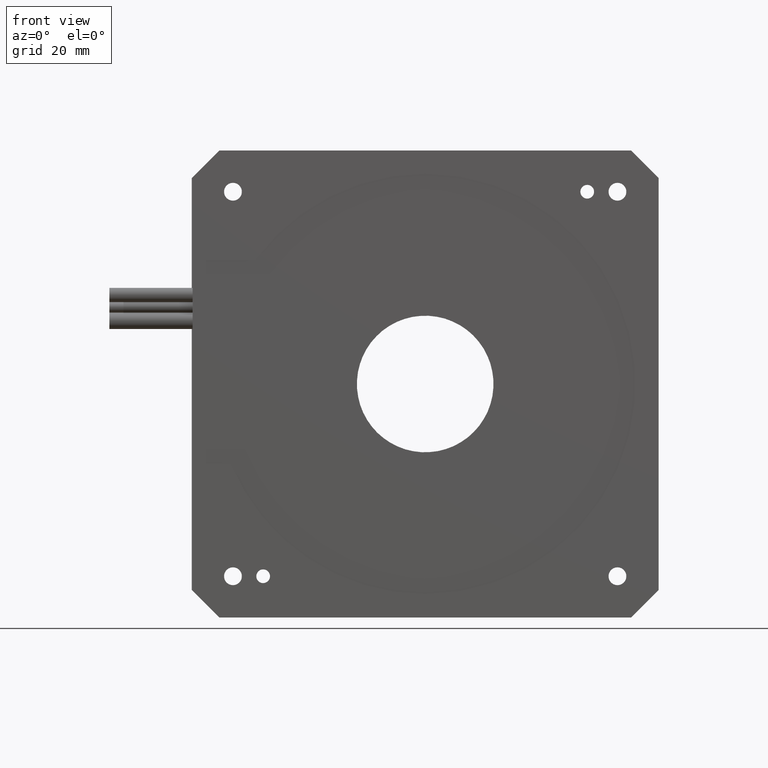
[diagram: clean part render]
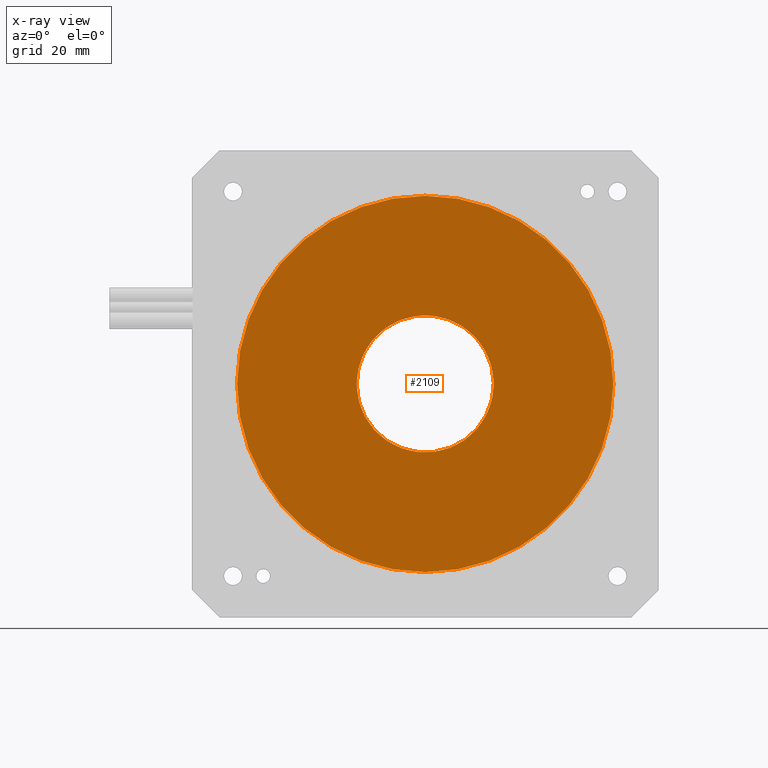
[diagram: x-ray — body ghosted, one internal face saturated and labeled with its STEP entity id]
A machine part, front view, then the same camera in x-ray: the body is ghosted and one INTERNAL B-rep face — a face not visible from any outside direction — is saturated and labeled: STEP entity #2109.
In plain terms, the highlighted planar face has unit normal (-0, 1, 0).
Its self-contained STEP definition (entity closure, byte-faithful):
#1883 = DIRECTION ( 'NONE',  ( -0.3420201433256692700, 0.0000000000000000000, -0.9396926207859082100 ) ) ;
#1974 = DIRECTION ( 'NONE',  ( 0.0000000000000000000, 1.000000000000000000, -0.0000000000000000000 ) ) ;
#2109 = ADVANCED_FACE ( 'NONE', ( #5881, #21308 ), #21290, .F. ) ;
#2371 = EDGE_LOOP ( 'NONE', ( #7407, #5031 ) ) ;
#2795 = AXIS2_PLACEMENT_3D ( 'NONE', #21847, #20069, #7536 ) ;
#3352 = CARTESIAN_POINT ( 'NONE',  ( 85.00000000000011400, 14.00000000000000200, 85.00000000000008500 ) ) ;
#3726 = VERTEX_POINT ( 'NONE', #12073 ) ;
#4415 = CIRCLE ( 'NONE', #2795, 25.00000000000001100 ) ;
#4502 = DIRECTION ( 'NONE',  ( -0.0000000000000000000, -1.000000000000000000, -0.0000000000000000000 ) ) ;
#4592 = CARTESIAN_POINT ( 'NONE',  ( 61.57162018219177200, 14.00000000000000200, 20.63105547616536500 ) ) ;
#5031 = ORIENTED_EDGE ( 'NONE', *, *, #14601, .F. ) ;
#5531 = CIRCLE ( 'NONE', #22204, 68.50000000000001400 ) ;
#5881 = FACE_OUTER_BOUND ( 'NONE', #2371, .T. ) ;
#6078 = CARTESIAN_POINT ( 'NONE',  ( 85.00000000000011400, 14.00000000000000200, 85.00000000000008500 ) ) ;
#6541 = EDGE_CURVE ( 'NONE', #8808, #19446, #5531, .T. ) ;
#6935 = DIRECTION ( 'NONE',  ( 0.0000000000000000000, 1.000000000000000000, -0.0000000000000000000 ) ) ;
#7407 = ORIENTED_EDGE ( 'NONE', *, *, #6541, .F. ) ;
#7536 = DIRECTION ( 'NONE',  ( 0.3420201433256690500, 0.0000000000000000000, 0.9396926207859082100 ) ) ;
#8470 = ORIENTED_EDGE ( 'NONE', *, *, #17779, .F. ) ;
#8808 = VERTEX_POINT ( 'NONE', #4592 ) ;
#10256 = DIRECTION ( 'NONE',  ( -0.3420201433256692700, 0.0000000000000000000, -0.9396926207859082100 ) ) ;
#11034 = CIRCLE ( 'NONE', #23176, 25.00000000000001100 ) ;
#11134 = CARTESIAN_POINT ( 'NONE',  ( 108.4283798178084800, 14.00000000000000200, 149.3689445238348100 ) ) ;
#11269 = CARTESIAN_POINT ( 'NONE',  ( 93.55050358314184700, 14.00000000000000200, 108.4923155196478000 ) ) ;
#12073 = CARTESIAN_POINT ( 'NONE',  ( 76.44949641685838100, 14.00000000000000200, 61.50768448035238100 ) ) ;
#12439 = DIRECTION ( 'NONE',  ( 0.3420201433256692700, 0.0000000000000000000, 0.9396926207859082100 ) ) ;
#12849 = EDGE_CURVE ( 'NONE', #18674, #3726, #11034, .T. ) ;
#14601 = EDGE_CURVE ( 'NONE', #19446, #8808, #18353, .T. ) ;
#14739 = EDGE_LOOP ( 'NONE', ( #20901, #8470 ) ) ;
#16961 = DIRECTION ( 'NONE',  ( 0.3420201433256690500, 0.0000000000000000000, 0.9396926207859082100 ) ) ;
#17750 = CARTESIAN_POINT ( 'NONE',  ( 85.00000000000011400, 14.00000000000000200, 85.00000000000008500 ) ) ;
#17779 = EDGE_CURVE ( 'NONE', #3726, #18674, #4415, .T. ) ;
#18348 = AXIS2_PLACEMENT_3D ( 'NONE', #17750, #23179, #12439 ) ;
#18353 = CIRCLE ( 'NONE', #22046, 68.50000000000001400 ) ;
#18674 = VERTEX_POINT ( 'NONE', #11269 ) ;
#19446 = VERTEX_POINT ( 'NONE', #11134 ) ;
#19836 = CARTESIAN_POINT ( 'NONE',  ( 85.00000000000011400, 14.00000000000000200, 85.00000000000008500 ) ) ;
#20069 = DIRECTION ( 'NONE',  ( -0.0000000000000000000, -1.000000000000000000, -0.0000000000000000000 ) ) ;
#20901 = ORIENTED_EDGE ( 'NONE', *, *, #12849, .F. ) ;
#21290 = PLANE ( 'NONE',  #18348 ) ;
#21308 = FACE_BOUND ( 'NONE', #14739, .T. ) ;
#21847 = CARTESIAN_POINT ( 'NONE',  ( 85.00000000000011400, 14.00000000000000200, 85.00000000000008500 ) ) ;
#22046 = AXIS2_PLACEMENT_3D ( 'NONE', #3352, #6935, #10256 ) ;
#22204 = AXIS2_PLACEMENT_3D ( 'NONE', #19836, #1974, #1883 ) ;
#23176 = AXIS2_PLACEMENT_3D ( 'NONE', #6078, #4502, #16961 ) ;
#23179 = DIRECTION ( 'NONE',  ( -0.0000000000000000000, 1.000000000000000000, 0.0000000000000000000 ) ) ;